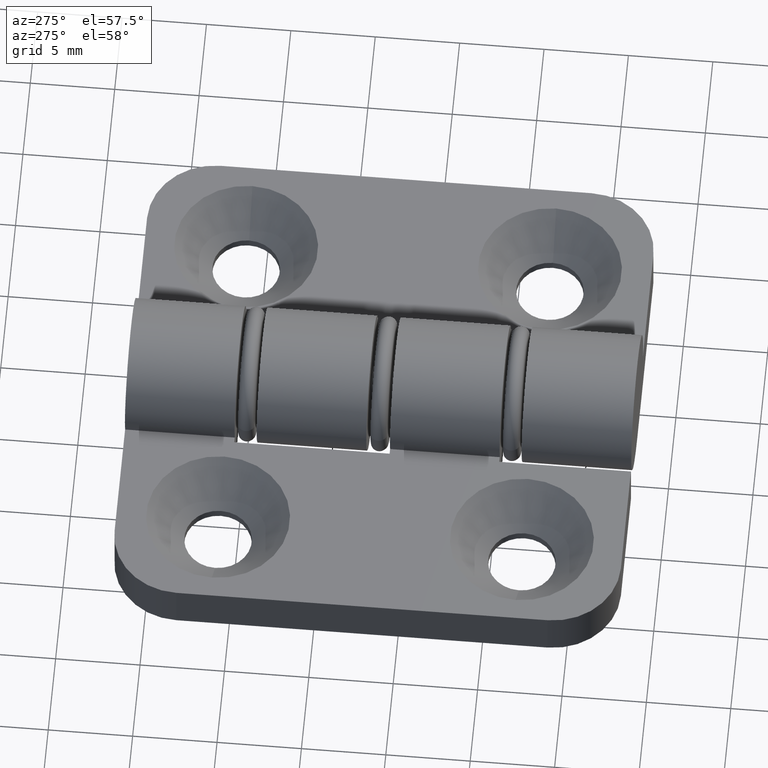
[diagram: clean part render]
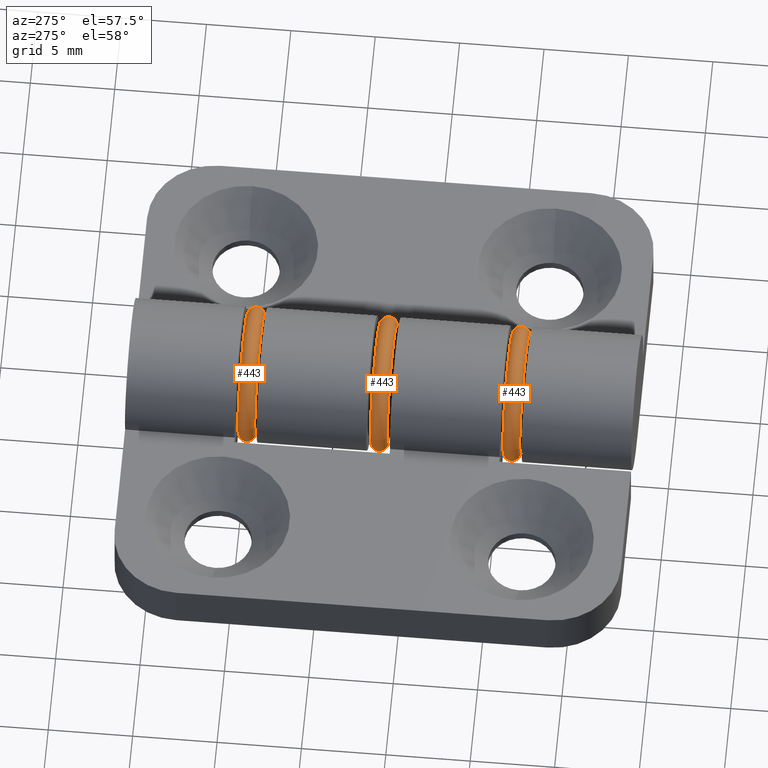
[diagram: same view with one multi-face feature highlighted, each face labeled with its STEP entity id]
A machine part, auxiliary view. The highlighted faces form ONE feature: a constant-radius fillet chain: 3 tangent blend faces with common blend radius 0.5 mm. The faces share edges in the B-rep.
Their STEP definitions:
[1] entity #443 (Torus):
#115=TOROIDAL_SURFACE('',#476,3.5,0.5);
#117=FACE_BOUND('',#165,.T.);
#136=FACE_OUTER_BOUND('',#164,.T.);
#164=EDGE_LOOP('',(#326));
#165=EDGE_LOOP('',(#327));
#208=CIRCLE('',#474,3.5);
#210=CIRCLE('',#477,3.5);
#232=VERTEX_POINT('',#685);
#234=VERTEX_POINT('',#690);
#272=EDGE_CURVE('',#232,#232,#208,.T.);
#274=EDGE_CURVE('',#234,#234,#210,.T.);
#326=ORIENTED_EDGE('',*,*,#272,.T.);
#327=ORIENTED_EDGE('',*,*,#274,.T.);
#443=ADVANCED_FACE('',(#136,#117),#115,.T.);
#474=AXIS2_PLACEMENT_3D('',#686,#537,#538);
#476=AXIS2_PLACEMENT_3D('',#689,#541,#542);
#477=AXIS2_PLACEMENT_3D('',#691,#543,#544);
#537=DIRECTION('center_axis',(0.,1.,0.));
#538=DIRECTION('ref_axis',(1.,0.,0.));
#541=DIRECTION('center_axis',(0.,1.,0.));
#542=DIRECTION('ref_axis',(0.,0.,1.));
#543=DIRECTION('center_axis',(0.,-1.,0.));
#544=DIRECTION('ref_axis',(1.,0.,0.));
#685=CARTESIAN_POINT('',(-3.5,0.,4.28626379701574E-16));
#686=CARTESIAN_POINT('Origin',(0.,0.,0.));
#689=CARTESIAN_POINT('Origin',(0.,0.5,0.));
#690=CARTESIAN_POINT('',(-3.5,1.,-4.28626379701574E-16));
#691=CARTESIAN_POINT('Origin',(0.,1.,0.));
[2] entity #443 (Torus):
#115=TOROIDAL_SURFACE('',#476,3.5,0.5);
#117=FACE_BOUND('',#165,.T.);
#136=FACE_OUTER_BOUND('',#164,.T.);
#164=EDGE_LOOP('',(#326));
#165=EDGE_LOOP('',(#327));
#208=CIRCLE('',#474,3.5);
#210=CIRCLE('',#477,3.5);
#232=VERTEX_POINT('',#685);
#234=VERTEX_POINT('',#690);
#272=EDGE_CURVE('',#232,#232,#208,.T.);
#274=EDGE_CURVE('',#234,#234,#210,.T.);
#326=ORIENTED_EDGE('',*,*,#272,.T.);
#327=ORIENTED_EDGE('',*,*,#274,.T.);
#443=ADVANCED_FACE('',(#136,#117),#115,.T.);
#474=AXIS2_PLACEMENT_3D('',#686,#537,#538);
#476=AXIS2_PLACEMENT_3D('',#689,#541,#542);
#477=AXIS2_PLACEMENT_3D('',#691,#543,#544);
#537=DIRECTION('center_axis',(0.,1.,0.));
#538=DIRECTION('ref_axis',(1.,0.,0.));
#541=DIRECTION('center_axis',(0.,1.,0.));
#542=DIRECTION('ref_axis',(0.,0.,1.));
#543=DIRECTION('center_axis',(0.,-1.,0.));
#544=DIRECTION('ref_axis',(1.,0.,0.));
#685=CARTESIAN_POINT('',(-3.5,0.,4.28626379701574E-16));
#686=CARTESIAN_POINT('Origin',(0.,0.,0.));
#689=CARTESIAN_POINT('Origin',(0.,0.5,0.));
#690=CARTESIAN_POINT('',(-3.5,1.,-4.28626379701574E-16));
#691=CARTESIAN_POINT('Origin',(0.,1.,0.));
[3] entity #443 (Torus):
#115=TOROIDAL_SURFACE('',#476,3.5,0.5);
#117=FACE_BOUND('',#165,.T.);
#136=FACE_OUTER_BOUND('',#164,.T.);
#164=EDGE_LOOP('',(#326));
#165=EDGE_LOOP('',(#327));
#208=CIRCLE('',#474,3.5);
#210=CIRCLE('',#477,3.5);
#232=VERTEX_POINT('',#685);
#234=VERTEX_POINT('',#690);
#272=EDGE_CURVE('',#232,#232,#208,.T.);
#274=EDGE_CURVE('',#234,#234,#210,.T.);
#326=ORIENTED_EDGE('',*,*,#272,.T.);
#327=ORIENTED_EDGE('',*,*,#274,.T.);
#443=ADVANCED_FACE('',(#136,#117),#115,.T.);
#474=AXIS2_PLACEMENT_3D('',#686,#537,#538);
#476=AXIS2_PLACEMENT_3D('',#689,#541,#542);
#477=AXIS2_PLACEMENT_3D('',#691,#543,#544);
#537=DIRECTION('center_axis',(0.,1.,0.));
#538=DIRECTION('ref_axis',(1.,0.,0.));
#541=DIRECTION('center_axis',(0.,1.,0.));
#542=DIRECTION('ref_axis',(0.,0.,1.));
#543=DIRECTION('center_axis',(0.,-1.,0.));
#544=DIRECTION('ref_axis',(1.,0.,0.));
#685=CARTESIAN_POINT('',(-3.5,0.,4.28626379701574E-16));
#686=CARTESIAN_POINT('Origin',(0.,0.,0.));
#689=CARTESIAN_POINT('Origin',(0.,0.5,0.));
#690=CARTESIAN_POINT('',(-3.5,1.,-4.28626379701574E-16));
#691=CARTESIAN_POINT('Origin',(0.,1.,0.));